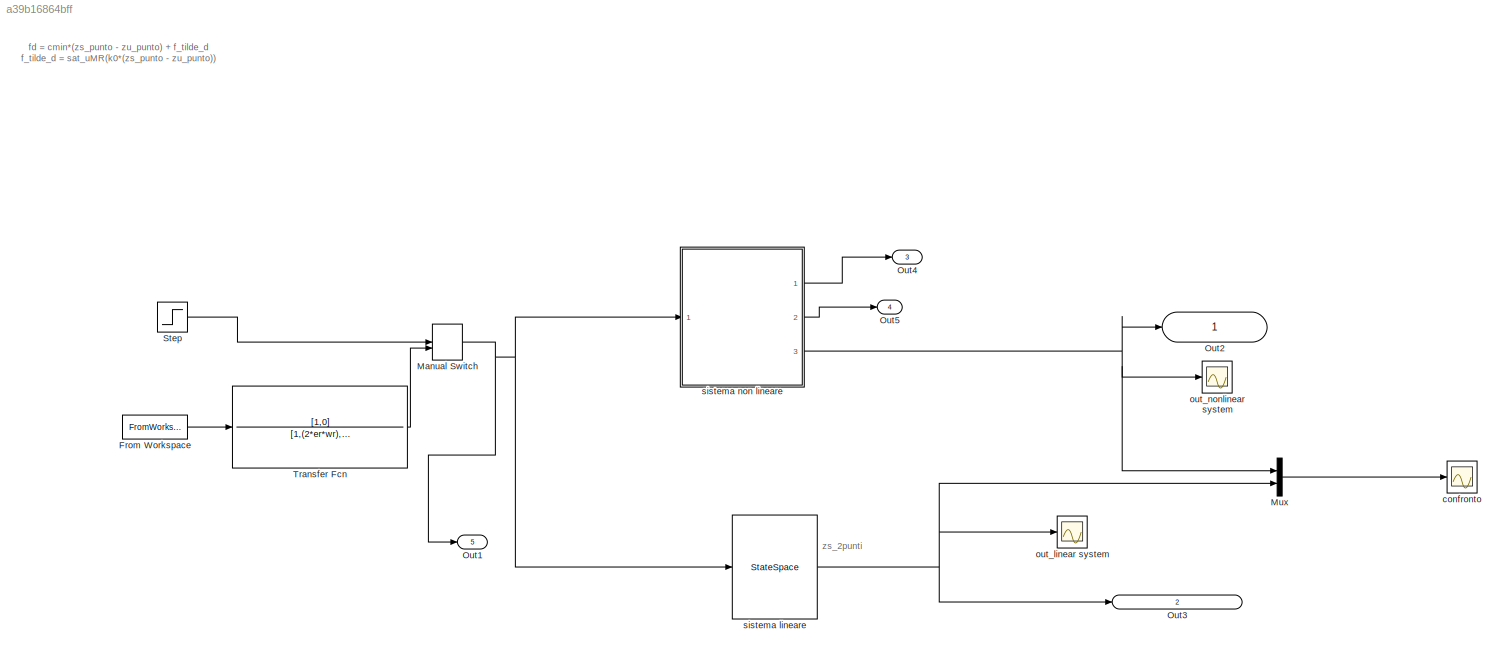
MODEL slx_a39b16864bff
KIND model
CONFIG AbsTol = auto
CONFIG EnableMultiTasking = off
CONFIG FixedStep = dt
CONFIG MaxStep = auto
CONFIG MinStep = auto
CONFIG RelTol = 1e-3
CONFIG SampleTimeConstraint = Unconstrained
CONFIG Solver = FixedStepAuto
CONFIG SolverName = FixedStepAuto
CONFIG StartTime = 0.0
CONFIG StopTime = t_tot
BLOCK [FromWorkspace] From Workspace
  SampleTime = 0
  VariableName = N
  ZeroCross = on
BLOCK [ManualSwitch] Manual Switch
  CurrentSetting = 0
BLOCK [Mux] Mux
  DisplayOption = bar
  Inputs = 2
  Ports = [2, 1]
BLOCK [Outport] Out1
  IconDisplay = Signal name
  Port = 5
  SignalName = zr
BLOCK [Outport] Out2
  IconDisplay = Signal name
  SignalName = zs_2punti_nl
BLOCK [Outport] Out3
  IconDisplay = Signal name
  Port = 2
  SignalName = zs_2punti_l
BLOCK [Outport] Out4
  IconDisplay = Signal name
  Port = 3
  SignalName = fd
BLOCK [Outport] Out5
  IconDisplay = Port number
  Port = 4
  SignalName = zTilde_punto
BLOCK [Step] Step
  SampleTime = 0
BLOCK [TransferFcn] Transfer Fcn
  Denominator = [1,(2*er*wr),wr^2]
  Numerator = [1,0]
BLOCK [Scope] confronto
  Floating = off
  NumInputPorts = 1
  Ports = [1]
  ScopeSpecificationString = Simulink.scopes.TimeScopeBlockCfg('CurrentConfiguration', extmgr.ConfigurationSet(extmgr.Configuration('Core','General UI',true),extmgr.Configuration('Core','Source UI',true),extmgr.Configuration('Sources','WiredSimulink',true,'DataLoggingVariableName','ScopeData1'),extmgr.Configuration('Visuals','Time Domain',true,'SerializedDisplays',{struct('MinYLimReal','-0.52573','MaxYLimReal','0.287','YLabel...<+1471ch>
BLOCK [Scope] out_linear system
  Floating = off
  NumInputPorts = 1
  Ports = [1]
  ScopeSpecificationString = Simulink.scopes.TimeScopeBlockCfg('CurrentConfiguration', extmgr.ConfigurationSet(extmgr.Configuration('Core','General UI',true),extmgr.Configuration('Core','Source UI',true),extmgr.Configuration('Sources','WiredSimulink',true,'DataLoggingVariableName','ScopeData1'),extmgr.Configuration('Visuals','Time Domain',true,'SerializedDisplays',{struct('MinYLimReal','-5.53964','MaxYLimReal','5.48724','YLab...<+1455ch>
BLOCK [Scope] out_nonlinear system
  Floating = off
  NumInputPorts = 1
  Ports = [1]
  ScopeSpecificationString = Simulink.scopes.TimeScopeBlockCfg('CurrentConfiguration', extmgr.ConfigurationSet(extmgr.Configuration('Core','General UI',true),extmgr.Configuration('Core','Source UI',true),extmgr.Configuration('Sources','WiredSimulink',true,'DataLoggingVariableName','ScopeData1'),extmgr.Configuration('Visuals','Time Domain',true,'SerializedDisplays',{struct('MinYLimReal','-5.35812','MaxYLimReal','4.44677','YLab...<+1409ch>
BLOCK [StateSpace] sistema lineare
  A = A
  B = B
  C = C
  D = 0
  InitialCondition = 0
  Ports = [1, 1]
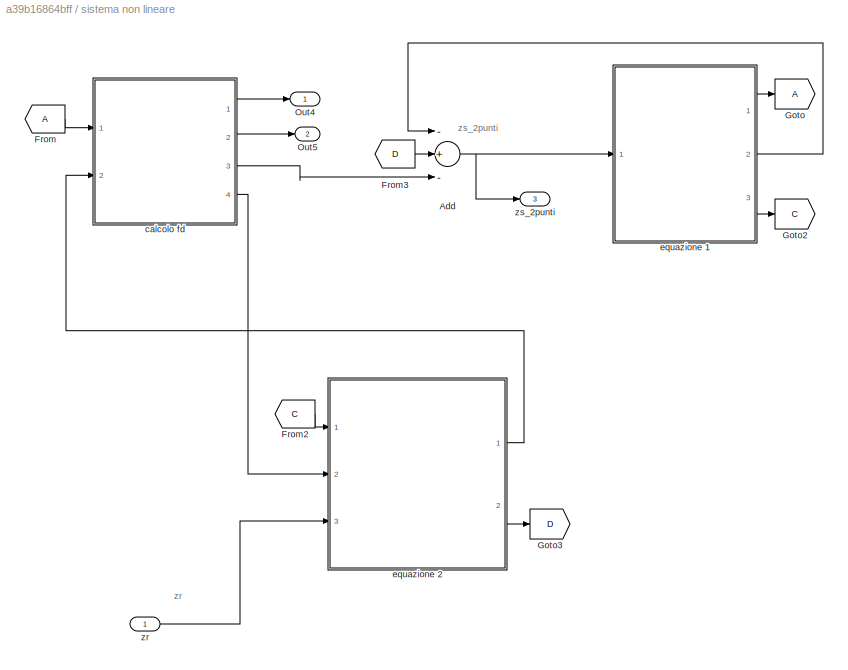
BLOCK [SubSystem] sistema non lineare
  Ports = [1, 3]
  RequestExecContextInheritance = off
BLOCK [Sum] sistema non lineare/Add
  InputSameDT = off
  Inputs = -+-
  OutDataTypeStr = Inherit: Inherit via internal rule
  Ports = [3, 1]
  SaturateOnIntegerOverflow = off
BLOCK [From] sistema non lineare/From
BLOCK [From] sistema non lineare/From2
  GotoTag = C
BLOCK [From] sistema non lineare/From3
  GotoTag = D
BLOCK [Goto] sistema non lineare/Goto
BLOCK [Goto] sistema non lineare/Goto2
  GotoTag = C
BLOCK [Goto] sistema non lineare/Goto3
  GotoTag = D
BLOCK [Outport] sistema non lineare/Out4
  IconDisplay = Signal name
BLOCK [Outport] sistema non lineare/Out5
  IconDisplay = Port number
  Port = 2
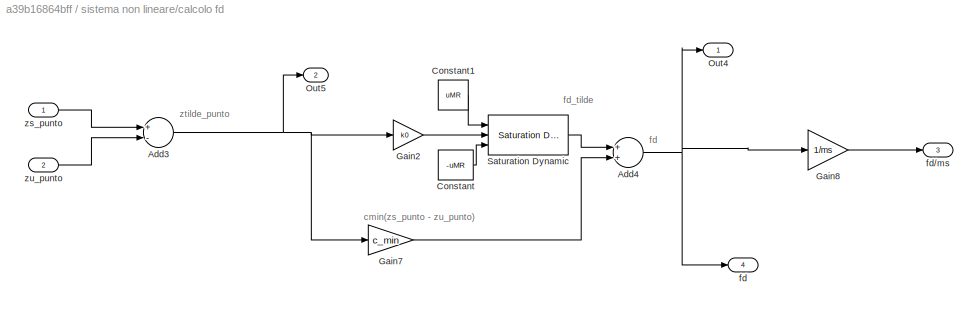
BLOCK [SubSystem] sistema non lineare/calcolo fd
  Ports = [2, 4]
  RequestExecContextInheritance = off
BLOCK [Sum] sistema non lineare/calcolo fd/Add3
  InputSameDT = off
  Inputs = +-
  OutDataTypeStr = Inherit: Inherit via internal rule
  Ports = [2, 1]
  SaturateOnIntegerOverflow = off
BLOCK [Sum] sistema non lineare/calcolo fd/Add4
  InputSameDT = off
  OutDataTypeStr = Inherit: Inherit via internal rule
  Ports = [2, 1]
  SaturateOnIntegerOverflow = off
BLOCK [Constant] sistema non lineare/calcolo fd/Constant
  Value = -uMR
BLOCK [Constant] sistema non lineare/calcolo fd/Constant1
  Value = uMR
BLOCK [Gain] sistema non lineare/calcolo fd/Gain2
  Gain = k0
  OutDataTypeStr = Inherit: Inherit via internal rule
  ParamDataTypeStr = Inherit: Inherit via internal rule
  SaturateOnIntegerOverflow = off
BLOCK [Gain] sistema non lineare/calcolo fd/Gain7
  Gain = c_min
  OutDataTypeStr = Inherit: Inherit via internal rule
  ParamDataTypeStr = Inherit: Inherit via internal rule
  SaturateOnIntegerOverflow = off
BLOCK [Gain] sistema non lineare/calcolo fd/Gain8
  Gain = 1/ms
  OutDataTypeStr = Inherit: Inherit via internal rule
  ParamDataTypeStr = Inherit: Inherit via internal rule
  SaturateOnIntegerOverflow = off
BLOCK [Outport] sistema non lineare/calcolo fd/Out4
  IconDisplay = Signal name
BLOCK [Outport] sistema non lineare/calcolo fd/Out5
  IconDisplay = Signal name
  Port = 2
BLOCK [Reference] sistema non lineare/calcolo fd/Saturation Dynamic  REF=simulink/Discontinuities/Saturation
Dynamic
  Ports = [3, 1]
  SourceBlock = simulink/Discontinuities/Saturation\nDynamic
  SourceProductBaseCode = SL
  SourceProductName = Simulink
  SourceType = Saturation Dynamic
BLOCK [Outport] sistema non lineare/calcolo fd/fd
  IconDisplay = Port number
  Port = 4
BLOCK [Outport] sistema non lineare/calcolo fd/fd//ms
  IconDisplay = Port number
  Port = 3
BLOCK [Inport] sistema non lineare/calcolo fd/zs_punto
  IconDisplay = Port number
BLOCK [Inport] sistema non lineare/calcolo fd/zu_punto
  IconDisplay = Port number
  Port = 2
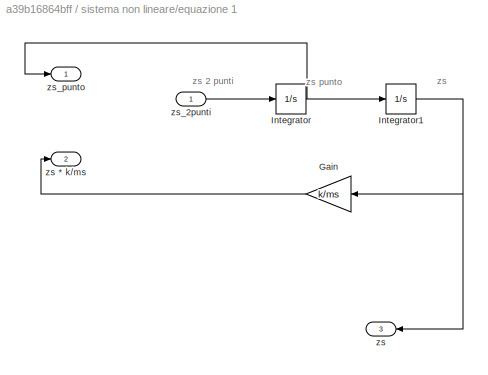
BLOCK [SubSystem] sistema non lineare/equazione 1
  Ports = [1, 3]
  RequestExecContextInheritance = off
BLOCK [Gain] sistema non lineare/equazione 1/Gain
  Gain = k/ms
  OutDataTypeStr = Inherit: Inherit via internal rule
  ParamDataTypeStr = Inherit: Inherit via internal rule
  SaturateOnIntegerOverflow = off
BLOCK [Integrator] sistema non lineare/equazione 1/Integrator
  Ports = [1, 1]
BLOCK [Integrator] sistema non lineare/equazione 1/Integrator1
  Ports = [1, 1]
BLOCK [Outport] sistema non lineare/equazione 1/zs
  IconDisplay = Port number
  Port = 3
BLOCK [Outport] sistema non lineare/equazione 1/zs * k//ms 
  IconDisplay = Port number
  Port = 2
BLOCK [Inport] sistema non lineare/equazione 1/zs_2punti
  IconDisplay = Port number
BLOCK [Outport] sistema non lineare/equazione 1/zs_punto
  IconDisplay = Port number
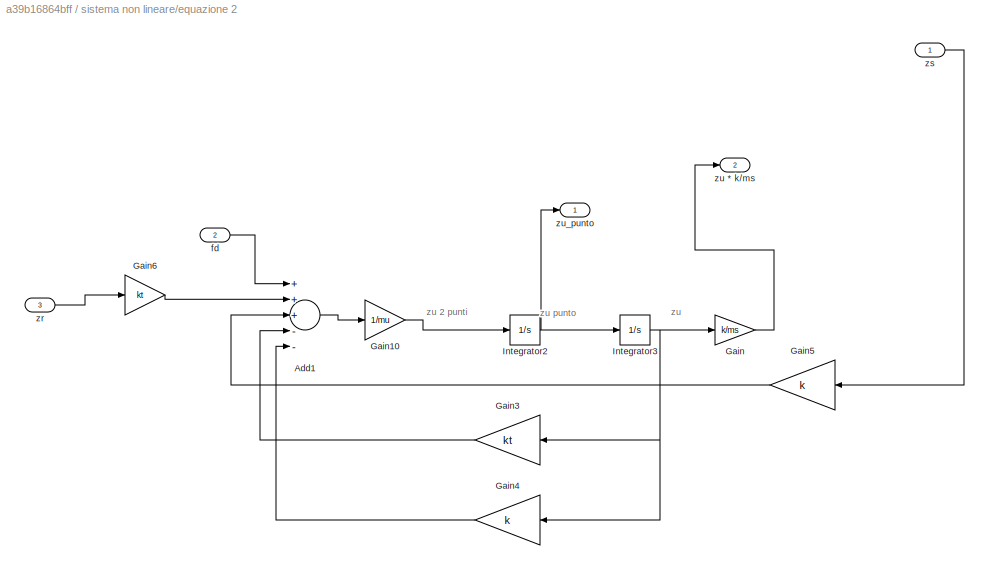
BLOCK [SubSystem] sistema non lineare/equazione 2
  Ports = [3, 2]
  RequestExecContextInheritance = off
BLOCK [Sum] sistema non lineare/equazione 2/Add1
  InputSameDT = off
  Inputs = +++--
  OutDataTypeStr = Inherit: Inherit via internal rule
  Ports = [5, 1]
  SaturateOnIntegerOverflow = off
BLOCK [Gain] sistema non lineare/equazione 2/Gain
  Gain = k/ms
  OutDataTypeStr = Inherit: Inherit via internal rule
  ParamDataTypeStr = Inherit: Inherit via internal rule
  SaturateOnIntegerOverflow = off
BLOCK [Gain] sistema non lineare/equazione 2/Gain10
  Gain = 1/mu
  OutDataTypeStr = Inherit: Inherit via internal rule
  ParamDataTypeStr = Inherit: Inherit via internal rule
  SaturateOnIntegerOverflow = off
BLOCK [Gain] sistema non lineare/equazione 2/Gain3
  Gain = kt
  OutDataTypeStr = Inherit: Inherit via internal rule
  ParamDataTypeStr = Inherit: Inherit via internal rule
  SaturateOnIntegerOverflow = off
BLOCK [Gain] sistema non lineare/equazione 2/Gain4
  Gain = k
  OutDataTypeStr = Inherit: Inherit via internal rule
  ParamDataTypeStr = Inherit: Inherit via internal rule
  SaturateOnIntegerOverflow = off
BLOCK [Gain] sistema non lineare/equazione 2/Gain5
  Gain = k
  OutDataTypeStr = Inherit: Inherit via internal rule
  ParamDataTypeStr = Inherit: Inherit via internal rule
  SaturateOnIntegerOverflow = off
BLOCK [Gain] sistema non lineare/equazione 2/Gain6
  Gain = kt
  OutDataTypeStr = Inherit: Inherit via internal rule
  ParamDataTypeStr = Inherit: Inherit via internal rule
  SaturateOnIntegerOverflow = off
BLOCK [Integrator] sistema non lineare/equazione 2/Integrator2
  Ports = [1, 1]
BLOCK [Integrator] sistema non lineare/equazione 2/Integrator3
  Ports = [1, 1]
BLOCK [Inport] sistema non lineare/equazione 2/fd
  IconDisplay = Port number
  Port = 2
BLOCK [Inport] sistema non lineare/equazione 2/zr
  IconDisplay = Port number
  Port = 3
BLOCK [Inport] sistema non lineare/equazione 2/zs
  IconDisplay = Port number
BLOCK [Outport] sistema non lineare/equazione 2/zu * k//ms 
  IconDisplay = Port number
  Port = 2
BLOCK [Outport] sistema non lineare/equazione 2/zu_punto
  IconDisplay = Port number
BLOCK [Inport] sistema non lineare/zr
  IconDisplay = Port number
BLOCK [Outport] sistema non lineare/zs_2punti
  IconDisplay = Port number
  Port = 3
ANNOTATION (root): fd = cmin*(zs_punto - zu_punto) + f_tilde_d f_tilde_d = sat_uMR(k0*(zs_punto - zu_punto))
ANNOTATION (root): zs_2punti
ANNOTATION sistema non lineare: zs_2punti
ANNOTATION sistema non lineare: zr
ANNOTATION sistema non lineare/calcolo fd: fd
ANNOTATION sistema non lineare/calcolo fd: fd_tilde
ANNOTATION sistema non lineare/calcolo fd: ztilde_punto
ANNOTATION sistema non lineare/calcolo fd: cmin(zs_punto - zu_punto)
ANNOTATION sistema non lineare/equazione 1: zs
ANNOTATION sistema non lineare/equazione 1: zs 2 punti
ANNOTATION sistema non lineare/equazione 1: zs punto
ANNOTATION sistema non lineare/equazione 2: zu
ANNOTATION sistema non lineare/equazione 2: zu 2 punti
ANNOTATION sistema non lineare/equazione 2: zu punto
LINE From Workspace:1 -> Transfer Fcn:1
NET Manual Switch:1 -> Out1:1, sistema lineare:1, sistema non lineare:1
LINE Mux:1 -> confronto:1
LINE Step:1 -> Manual Switch:1
LINE Transfer Fcn:1 -> Manual Switch:2
NET sistema lineare:1 -> Mux:2, Out3:1, out_linear system:1
NET sistema non lineare/Add:1 -> sistema non lineare/equazione 1:1, sistema non lineare/zs_2punti:1
LINE sistema non lineare/From2:1 -> sistema non lineare/equazione 2:1
LINE sistema non lineare/From3:1 -> sistema non lineare/Add:2
LINE sistema non lineare/From:1 -> sistema non lineare/calcolo fd:1
NET sistema non lineare/calcolo fd/Add3:1 -> sistema non lineare/calcolo fd/Gain2:1, sistema non lineare/calcolo fd/Gain7:1, sistema non lineare/calcolo fd/Out5:1
NET sistema non lineare/calcolo fd/Add4:1 -> sistema non lineare/calcolo fd/Gain8:1, sistema non lineare/calcolo fd/Out4:1, sistema non lineare/calcolo fd/fd:1
LINE sistema non lineare/calcolo fd/Constant1:1 -> sistema non lineare/calcolo fd/Saturation Dynamic:1
LINE sistema non lineare/calcolo fd/Constant:1 -> sistema non lineare/calcolo fd/Saturation Dynamic:3
LINE sistema non lineare/calcolo fd/Gain2:1 -> sistema non lineare/calcolo fd/Saturation Dynamic:2
LINE sistema non lineare/calcolo fd/Gain7:1 -> sistema non lineare/calcolo fd/Add4:2
LINE sistema non lineare/calcolo fd/Gain8:1 -> sistema non lineare/calcolo fd/fd//ms:1
LINE sistema non lineare/calcolo fd/Saturation Dynamic:1 -> sistema non lineare/calcolo fd/Add4:1
LINE sistema non lineare/calcolo fd/zs_punto:1 -> sistema non lineare/calcolo fd/Add3:1
LINE sistema non lineare/calcolo fd/zu_punto:1 -> sistema non lineare/calcolo fd/Add3:2
LINE sistema non lineare/calcolo fd:1 -> sistema non lineare/Out4:1
LINE sistema non lineare/calcolo fd:2 -> sistema non lineare/Out5:1
LINE sistema non lineare/calcolo fd:3 -> sistema non lineare/Add:3
LINE sistema non lineare/calcolo fd:4 -> sistema non lineare/equazione 2:2
LINE sistema non lineare/equazione 1/Gain:1 -> sistema non lineare/equazione 1/zs * k//ms :1
NET sistema non lineare/equazione 1/Integrator1:1 -> sistema non lineare/equazione 1/Gain:1, sistema non lineare/equazione 1/zs:1
NET sistema non lineare/equazione 1/Integrator:1 -> sistema non lineare/equazione 1/Integrator1:1, sistema non lineare/equazione 1/zs_punto:1
LINE sistema non lineare/equazione 1/zs_2punti:1 -> sistema non lineare/equazione 1/Integrator:1
LINE sistema non lineare/equazione 1:1 -> sistema non lineare/Goto:1
LINE sistema non lineare/equazione 1:2 -> sistema non lineare/Add:1
LINE sistema non lineare/equazione 1:3 -> sistema non lineare/Goto2:1
LINE sistema non lineare/equazione 2/Add1:1 -> sistema non lineare/equazione 2/Gain10:1
LINE sistema non lineare/equazione 2/Gain10:1 -> sistema non lineare/equazione 2/Integrator2:1
LINE sistema non lineare/equazione 2/Gain3:1 -> sistema non lineare/equazione 2/Add1:4
LINE sistema non lineare/equazione 2/Gain4:1 -> sistema non lineare/equazione 2/Add1:5
LINE sistema non lineare/equazione 2/Gain5:1 -> sistema non lineare/equazione 2/Add1:3
LINE sistema non lineare/equazione 2/Gain6:1 -> sistema non lineare/equazione 2/Add1:2
LINE sistema non lineare/equazione 2/Gain:1 -> sistema non lineare/equazione 2/zu * k//ms :1
NET sistema non lineare/equazione 2/Integrator2:1 -> sistema non lineare/equazione 2/Integrator3:1, sistema non lineare/equazione 2/zu_punto:1
NET sistema non lineare/equazione 2/Integrator3:1 -> sistema non lineare/equazione 2/Gain3:1, sistema non lineare/equazione 2/Gain4:1, sistema non lineare/equazione 2/Gain:1
LINE sistema non lineare/equazione 2/fd:1 -> sistema non lineare/equazione 2/Add1:1
LINE sistema non lineare/equazione 2/zr:1 -> sistema non lineare/equazione 2/Gain6:1
LINE sistema non lineare/equazione 2/zs:1 -> sistema non lineare/equazione 2/Gain5:1
LINE sistema non lineare/equazione 2:1 -> sistema non lineare/calcolo fd:2
LINE sistema non lineare/equazione 2:2 -> sistema non lineare/Goto3:1
LINE sistema non lineare/zr:1 -> sistema non lineare/equazione 2:3
LINE sistema non lineare:1 -> Out4:1
LINE sistema non lineare:2 -> Out5:1
NET sistema non lineare:3 -> Mux:1, Out2:1, out_nonlinear system:1
note: NET lines group one-source signal fan-out (src -> all destinations, sorted); 1:1 wires keep LINE
